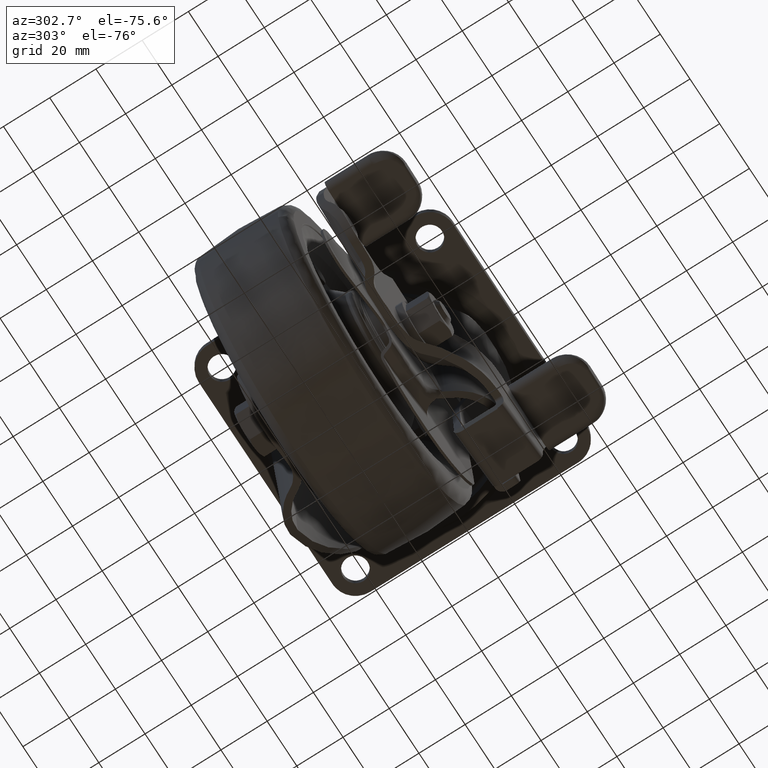
[diagram: clean part render]
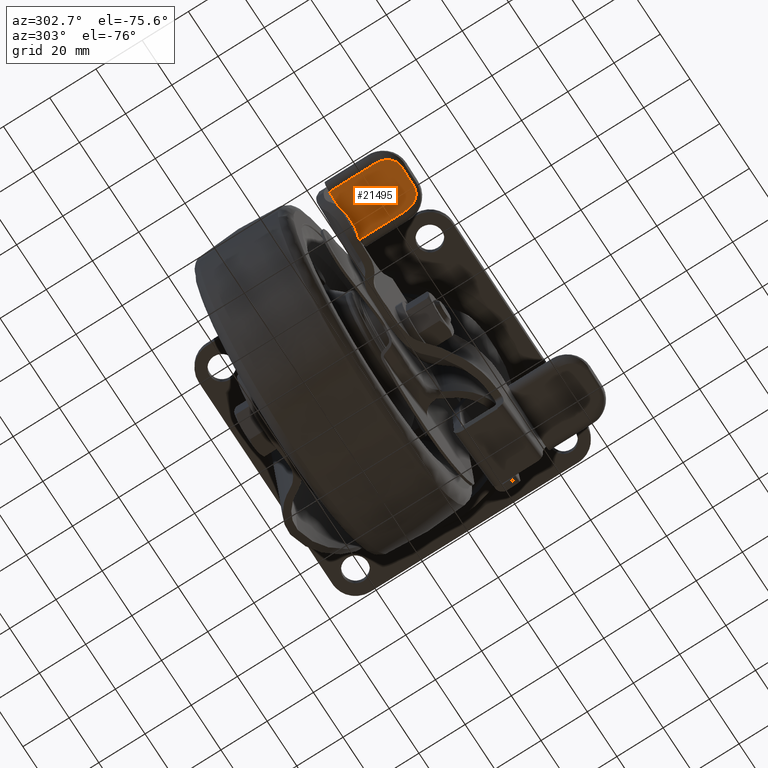
[diagram: same view with one face highlighted and labeled with its STEP entity id]
A machine part, auxiliary view. The second image highlights one B-rep face of the part: STEP entity #21495.
In plain terms, the highlighted face is a freeform B-spline surface patch.
Its self-contained STEP definition (entity closure, byte-faithful):
#20798=CARTESIAN_POINT('',(-75.005357844589909,-52.650000000000013,-80.281291554713704));
#20799=VERTEX_POINT('',#20798);
#20814=CARTESIAN_POINT('',(-81.245567474762396,-61.250000000000000,-79.415390999510194));
#20815=VERTEX_POINT('',#20814);
#20825=CARTESIAN_POINT('',(-75.005357844589909,-52.650000000000013,-80.281291554713704));
#20826=CARTESIAN_POINT('',(-75.005591476516400,-53.086571760291250,-80.281259135608238));
#20827=CARTESIAN_POINT('',(-75.016694399838741,-53.710443476685789,-80.279718477835431));
#20828=CARTESIAN_POINT('',(-75.071838383449489,-54.550632340311623,-80.272066618546546));
#20829=CARTESIAN_POINT('',(-75.119124016274185,-54.984738955388202,-80.265505195430535));
#20830=CARTESIAN_POINT('',(-75.254195905845549,-55.878041441942393,-80.246762423776033));
#20831=CARTESIAN_POINT('',(-75.490319707091217,-56.789303144181652,-80.213997542032203));
#20832=CARTESIAN_POINT('',(-75.892784650035850,-57.668002270773187,-80.158150921773171));
#20833=CARTESIAN_POINT('',(-76.187841910864563,-58.215816983807642,-80.117208347547347));
#20834=CARTESIAN_POINT('',(-76.624219638262900,-58.898462304188058,-80.056655940044351));
#20835=CARTESIAN_POINT('',(-77.337791432840831,-59.683765799205382,-79.957639681020964));
#20836=CARTESIAN_POINT('',(-78.053202364383395,-60.231928812673203,-79.858368220679708));
#20837=CARTESIAN_POINT('',(-78.688337083035208,-60.618544482902252,-79.770236004279482));
#20838=CARTESIAN_POINT('',(-79.418057379488928,-60.961893166943959,-79.668978955672074));
#20839=CARTESIAN_POINT('',(-80.318855447317304,-61.201530302990363,-79.543982906935696));
#20840=CARTESIAN_POINT('',(-80.967637946017547,-61.249967556895399,-79.453956904745766));
#20841=CARTESIAN_POINT('',(-81.245567474762396,-61.250000000000000,-79.415390999510194));
#20842=B_SPLINE_CURVE_WITH_KNOTS('',3,(#20825,#20826,#20827,#20828,#20829,#20830,#20831,#20832,#20833,#20834,#20835,#20836,#20837,#20838,#20839,#20840,#20841),.UNSPECIFIED.,.F.,.U.,(4,1,1,1,1,1,1,1,1,1,1,1,1,1,4),(-0.000089347027876,1.309791370638092,1.870993828806512,2.525751948749594,2.619151408884195,4.583432312676479,5.331715038246781,5.518875203552748,6.454217887755386,7.763735337664994,8.699273176725459,9.166878298134542,10.008766290776700,11.131177542636619,11.973063648726670),.UNSPECIFIED.);
#20843=EDGE_CURVE('',#20799,#20815,#20842,.T.);
#20862=CARTESIAN_POINT('',(-89.194260352939395,-61.250000000000000,-78.312418826415808));
#20863=VERTEX_POINT('',#20862);
#20877=CARTESIAN_POINT('',(-81.245567474762396,-61.250000000000000,-79.415390999510194));
#20878=CARTESIAN_POINT('',(-89.194260352939395,-61.250000000000000,-78.312418826415808));
#20879=QUASI_UNIFORM_CURVE('',1,(#20877,#20878),.UNSPECIFIED.,.F.,.U.);
#20880=EDGE_CURVE('',#20815,#20863,#20879,.T.);
#20944=CARTESIAN_POINT('',(-95.434469983111995,-52.650000000000013,-77.446518271212199));
#20945=VERTEX_POINT('',#20944);
#20959=CARTESIAN_POINT('',(-89.194260352939395,-61.250000000000000,-78.312418826415808));
#20960=CARTESIAN_POINT('',(-89.595694180409481,-61.250257143774583,-78.256715285239508));
#20961=CARTESIAN_POINT('',(-90.244512666352108,-61.178881862406570,-78.166684289407399));
#20962=CARTESIAN_POINT('',(-91.282357492550616,-60.863759538755197,-78.022671433352997));
#20963=CARTESIAN_POINT('',(-92.082198615537948,-60.445147683736948,-77.911684316971304));
#20964=CARTESIAN_POINT('',(-92.807888674056557,-59.913561245306560,-77.810986510035860));
#20965=CARTESIAN_POINT('',(-93.333995914488824,-59.429727630037391,-77.737983104928361));
#20966=CARTESIAN_POINT('',(-93.880928060413424,-58.792390767165742,-77.662090005676419));
#20967=CARTESIAN_POINT('',(-94.237196703138935,-58.243150991924118,-77.612653651159448));
#20968=CARTESIAN_POINT('',(-94.680261153500041,-57.421360538722418,-77.551173384262057));
#20969=CARTESIAN_POINT('',(-95.031342814151103,-56.516877938490111,-77.502456782914166));
#20970=CARTESIAN_POINT('',(-95.227284465806861,-55.600925545212419,-77.475267634630498));
#20971=CARTESIAN_POINT('',(-95.316206584098950,-55.015414858906666,-77.462928672294083));
#20972=CARTESIAN_POINT('',(-95.390026809383173,-54.364667873100068,-77.452685270573909));
#20973=CARTESIAN_POINT('',(-95.417662891087517,-53.741215722211933,-77.448850447722052));
#20974=CARTESIAN_POINT('',(-95.428664815529814,-53.258158954922649,-77.447323804700730));
#20975=CARTESIAN_POINT('',(-95.429735488951124,-53.164585610859163,-77.447175236501110));
#20976=CARTESIAN_POINT('',(-95.432738343627733,-53.024286787171171,-77.446758556023141));
#20977=CARTESIAN_POINT('',(-95.433234056130189,-52.852743679894722,-77.446689770235949));
#20978=CARTESIAN_POINT('',(-95.434825775870138,-52.727996527592779,-77.446468900892143));
#20979=CARTESIAN_POINT('',(-95.434469983111995,-52.650000000000013,-77.446518271212199));
#20980=B_SPLINE_CURVE_WITH_KNOTS('',3,(#20959,#20960,#20961,#20962,#20963,#20964,#20965,#20966,#20967,#20968,#20969,#20970,#20971,#20972,#20973,#20974,#20975,#20976,#20977,#20978,#20979),.UNSPECIFIED.,.F.,.U.,(4,1,1,1,1,1,1,1,1,1,1,1,1,2,1,1,1,4),(0.000160691462863,1.216156145226055,1.964413682994712,3.273877949186312,3.928787803933941,4.677076513173801,5.425371736176669,6.454226171477322,6.641373732303943,8.231460503341465,9.353886720320931,9.447314527936031,10.008596495170901,11.318057172399980,11.458403806761311,11.598750441122640,11.739040514347490,11.973021312028459),.UNSPECIFIED.);
#20981=EDGE_CURVE('',#20863,#20945,#20980,.T.);
#21009=CARTESIAN_POINT('',(-75.005357844589909,-33.850000000000001,-80.281291554713704));
#21010=VERTEX_POINT('',#21009);
#21011=CARTESIAN_POINT('',(-75.005357844589909,-33.850000000000001,-80.281291554713704));
#21012=CARTESIAN_POINT('',(-75.005357844589909,-52.650000000000013,-80.281291554713704));
#21013=QUASI_UNIFORM_CURVE('',1,(#21011,#21012),.UNSPECIFIED.,.F.,.U.);
#21014=EDGE_CURVE('',#21010,#20799,#21013,.T.);
#21088=CARTESIAN_POINT('',(-95.434469983111995,-33.850000000000001,-77.446518271212199));
#21089=VERTEX_POINT('',#21088);
#21103=CARTESIAN_POINT('',(-95.434469983111995,-52.650000000000013,-77.446518271212199));
#21104=CARTESIAN_POINT('',(-95.434469983111995,-33.850000000000001,-77.446518271212199));
#21105=QUASI_UNIFORM_CURVE('',1,(#21103,#21104),.UNSPECIFIED.,.F.,.U.);
#21106=EDGE_CURVE('',#20945,#21089,#21105,.T.);
#21478=CARTESIAN_POINT('',(-73.984923732866321,-62.618629946893478,-80.422888474730271));
#21479=CARTESIAN_POINT('',(-96.454904642787085,-62.618629946893478,-77.304921275161121));
#21480=CARTESIAN_POINT('',(-73.984923732866321,-32.481369318181251,-80.422888474730271));
#21481=CARTESIAN_POINT('',(-96.454904642787085,-32.481369318181251,-77.304921275161121));
#21482=B_SPLINE_SURFACE_WITH_KNOTS('',1,1,((#21478,#21480),(#21479,#21481)),.UNSPECIFIED.,.F.,.F.,.U.,(2,2),(2,2),(0.0,22.685276316364160),(0.0,30.137260628712230),.UNSPECIFIED.);
#21483=CARTESIAN_POINT('',(-75.005357844589909,-33.850000000000001,-80.281291554713704));
#21484=CARTESIAN_POINT('',(-95.434469983111995,-33.850000000000001,-77.446518271212199));
#21485=QUASI_UNIFORM_CURVE('',1,(#21483,#21484),.UNSPECIFIED.,.F.,.U.);
#21486=EDGE_CURVE('',#21010,#21089,#21485,.T.);
#21487=ORIENTED_EDGE('',*,*,#21486,.F.);
#21488=ORIENTED_EDGE('',*,*,#21014,.T.);
#21489=ORIENTED_EDGE('',*,*,#20843,.T.);
#21490=ORIENTED_EDGE('',*,*,#20880,.T.);
#21491=ORIENTED_EDGE('',*,*,#20981,.T.);
#21492=ORIENTED_EDGE('',*,*,#21106,.T.);
#21493=EDGE_LOOP('',(#21487,#21488,#21489,#21490,#21491,#21492));
#21494=FACE_OUTER_BOUND('',#21493,.T.);
#21495=ADVANCED_FACE('',(#21494),#21482,.T.);